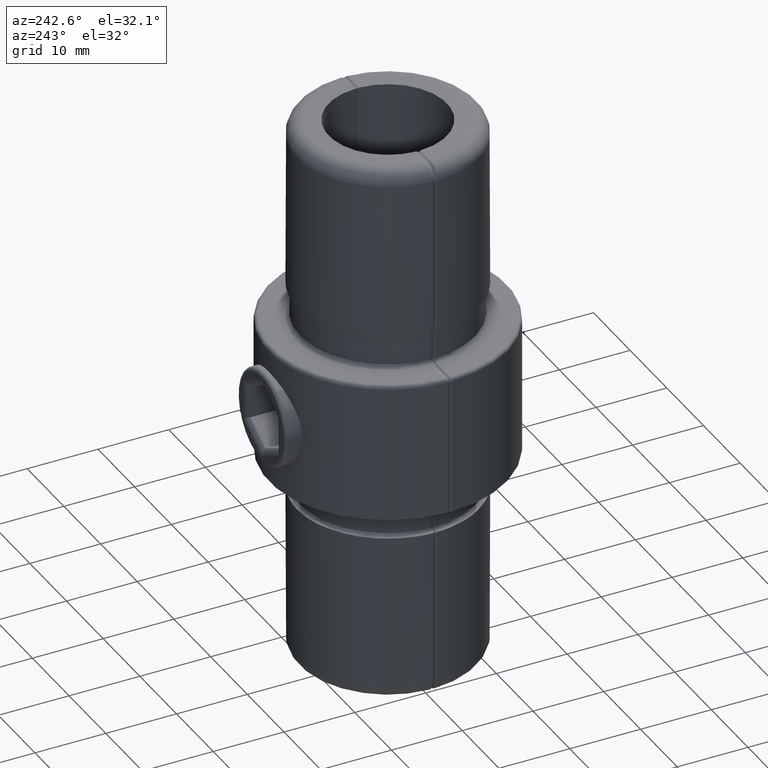
[diagram: clean part render]
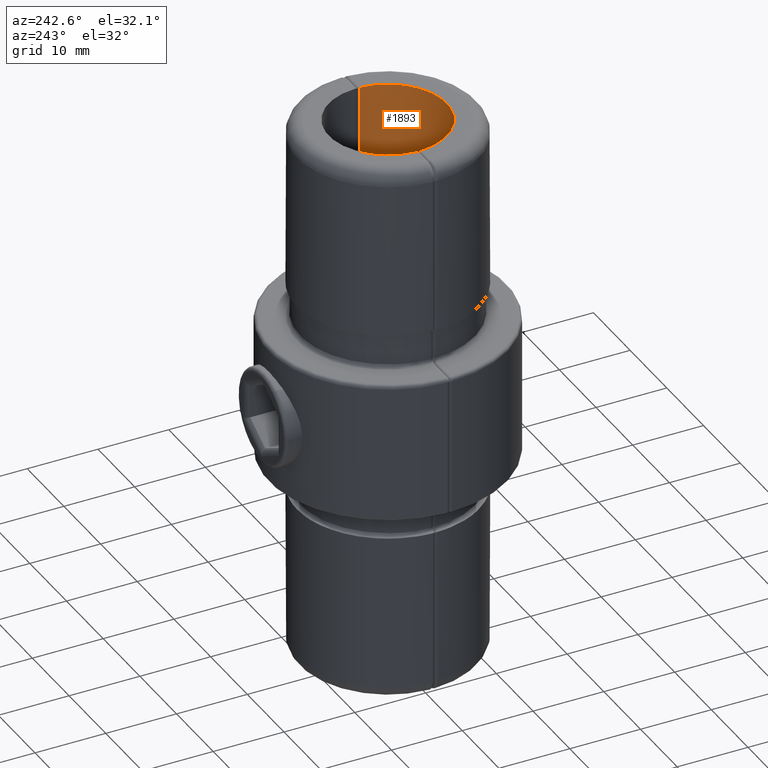
[diagram: same view with one face highlighted and labeled with its STEP entity id]
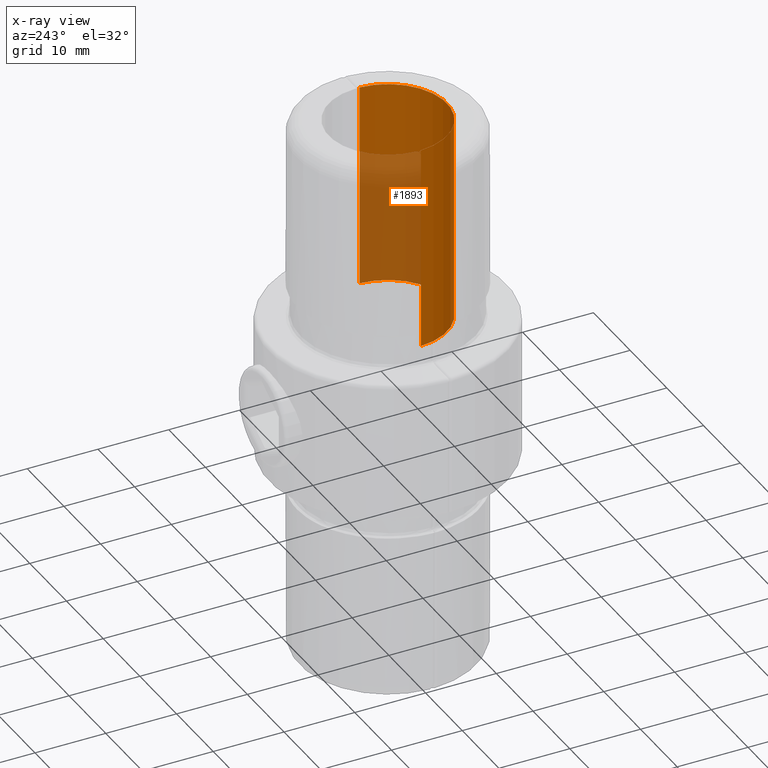
[diagram: x-ray of the same camera — body ghosted, the highlighted face saturated]
A machine part, auxiliary view. The second image highlights one B-rep face of the part: STEP entity #1893.
The next image is the same camera in x-ray: the body ghosted, the highlighted face saturated — about 40% of this face is hidden behind the body in this view.
In plain terms, the highlighted cylindrical surface (partial cylindrical patch) has radius 8.35 mm, axis along (-0, 0, -1).
Its self-contained STEP definition (entity closure, byte-faithful):
#179 = CARTESIAN_POINT ( 'NONE',  ( 8.343467552306218948, 0.4802259887005694838, -39.00000000000000000 ) ) ;
#230 = AXIS2_PLACEMENT_3D ( 'NONE', #5884, #4410, #1375 ) ;
#487 = VERTEX_POINT ( 'NONE', #5246 ) ;
#494 = CARTESIAN_POINT ( 'NONE',  ( 8.342661445845685364, 0.5000000000000045519, -10.00000000000000000 ) ) ;
#774 = CARTESIAN_POINT ( 'NONE',  ( -8.342938012921326418, 0.4934076986309678392, -39.00000000000000000 ) ) ;
#810 = CIRCLE ( 'NONE', #4341, 8.349999999999999645 ) ;
#813 = CARTESIAN_POINT ( 'NONE',  ( 8.342661445845685364, 0.5000000000000045519, -10.00000000000000000 ) ) ;
#856 = CARTESIAN_POINT ( 'NONE',  ( 8.343467552306218948, 0.4802259887005694838, -38.99960883546743418 ) ) ;
#955 = CARTESIAN_POINT ( 'NONE',  ( 8.342938012921326418, 0.4934076986309709478, -39.00000000000000000 ) ) ;
#969 = VECTOR ( 'NONE', #8671, 1000.000000000000000 ) ;
#1067 = AXIS2_PLACEMENT_3D ( 'NONE', #5717, #9354, #4888 ) ;
#1077 = VERTEX_POINT ( 'NONE', #494 ) ;
#1375 = DIRECTION ( 'NONE',  ( 1.000000000000000000, 0.000000000000000000, 0.000000000000000000 ) ) ;
#1443 = CARTESIAN_POINT ( 'NONE',  ( -2.755455298081558953E-17, 0.1500000000000008271, -10.00000000000000000 ) ) ;
#1452 = B_SPLINE_CURVE_WITH_KNOTS ( 'NONE', 3,
 ( #2343, #6077, #3105, #2376 ),
 .UNSPECIFIED., .F., .F.,
 ( 4, 4 ),
 ( 1.084202172485504434E-19, 1.979430069963165496E-05 ),
 .UNSPECIFIED. ) ;
#1522 = CARTESIAN_POINT ( 'NONE',  ( 8.342938012921326418, 0.4934076986309709478, -10.00000000000000000 ) ) ;
#1686 = CARTESIAN_POINT ( 'NONE',  ( -8.343467552306218948, 0.4802259887005663752, -39.00000000000000000 ) ) ;
#1754 = CARTESIAN_POINT ( 'NONE',  ( 8.343467552306218948, 0.4802259887005694838, -9.999608835467437729 ) ) ;
#1850 = CARTESIAN_POINT ( 'NONE',  ( 8.342661445845683588, 0.5000000000000046629, -39.00000000000000000 ) ) ;
#1893 = ADVANCED_FACE ( 'NONE', ( #3590 ), #8712, .F. ) ;
#1898 = CARTESIAN_POINT ( 'NONE',  ( 8.343467552306218948, 0.4802259887005694838, -38.99960883546743418 ) ) ;
#1960 = ORIENTED_EDGE ( 'NONE', *, *, #6018, .T. ) ;
#2198 = EDGE_CURVE ( 'NONE', #8225, #4314, #4067, .T. ) ;
#2343 = CARTESIAN_POINT ( 'NONE',  ( -8.342661445845685364, 0.5000000000000015543, -10.00000000000000000 ) ) ;
#2376 = CARTESIAN_POINT ( 'NONE',  ( -8.343467552306218948, 0.4802259887005664307, -9.999608835467437729 ) ) ;
#2467 = CARTESIAN_POINT ( 'NONE',  ( -8.342661445845685364, 0.5000000000000015543, -39.00000000000000000 ) ) ;
#2742 = B_SPLINE_CURVE_WITH_KNOTS ( 'NONE', 3,
 ( #6967, #955, #6226, #856 ),
 .UNSPECIFIED., .F., .F.,
 ( 4, 4 ),
 ( 0.000000000000000000, 1.979430069963180065E-05 ),
 .UNSPECIFIED. ) ;
#2933 = DIRECTION ( 'NONE',  ( 0.000000000000000000, 0.000000000000000000, -1.000000000000000000 ) ) ;
#3040 = ORIENTED_EDGE ( 'NONE', *, *, #6671, .T. ) ;
#3105 = CARTESIAN_POINT ( 'NONE',  ( -8.343206814312539521, 0.4868137772585575118, -9.999869573461117156 ) ) ;
#3163 = ORIENTED_EDGE ( 'NONE', *, *, #3950, .T. ) ;
#3389 = EDGE_CURVE ( 'NONE', #5378, #487, #7251, .T. ) ;
#3468 = VERTEX_POINT ( 'NONE', #6454 ) ;
#3590 = FACE_OUTER_BOUND ( 'NONE', #6607, .T. ) ;
#3857 = EDGE_CURVE ( 'NONE', #7432, #8225, #3901, .T. ) ;
#3901 = B_SPLINE_CURVE_WITH_KNOTS ( 'NONE', 3,
 ( #8210, #5182, #774, #5952 ),
 .UNSPECIFIED., .F., .F.,
 ( 4, 4 ),
 ( 0.000000000000000000, 1.979430069963163463E-05 ),
 .UNSPECIFIED. ) ;
#3950 = EDGE_CURVE ( 'NONE', #6891, #3468, #1452, .T. ) ;
#3988 = ORIENTED_EDGE ( 'NONE', *, *, #7817, .T. ) ;
#4067 = CIRCLE ( 'NONE', #1067, 8.349999999999999645 ) ;
#4082 = VECTOR ( 'NONE', #8480, 1000.000000000000000 ) ;
#4127 = ORIENTED_EDGE ( 'NONE', *, *, #3389, .T. ) ;
#4314 = VERTEX_POINT ( 'NONE', #1850 ) ;
#4341 = AXIS2_PLACEMENT_3D ( 'NONE', #1443, #2933, #8302 ) ;
#4410 = DIRECTION ( 'NONE',  ( -0.000000000000000000, -0.000000000000000000, 1.000000000000000000 ) ) ;
#4888 = DIRECTION ( 'NONE',  ( 1.000000000000000000, 0.000000000000000000, 0.000000000000000000 ) ) ;
#5182 = CARTESIAN_POINT ( 'NONE',  ( -8.343206814312539521, 0.4868137772585574563, -38.99986957346111893 ) ) ;
#5246 = CARTESIAN_POINT ( 'NONE',  ( 8.343467552306218948, 0.4802259887005694838, -9.999608835467437729 ) ) ;
#5378 = VERTEX_POINT ( 'NONE', #1898 ) ;
#5717 = CARTESIAN_POINT ( 'NONE',  ( -2.755455298081558953E-17, 0.1500000000000008271, -39.00000000000000000 ) ) ;
#5884 = CARTESIAN_POINT ( 'NONE',  ( -2.755455298081558953E-17, 0.1500000000000008271, -39.00000000000000000 ) ) ;
#5952 = CARTESIAN_POINT ( 'NONE',  ( -8.342661445845685364, 0.5000000000000015543, -39.00000000000000000 ) ) ;
#6018 = EDGE_CURVE ( 'NONE', #487, #1077, #7233, .T. ) ;
#6077 = CARTESIAN_POINT ( 'NONE',  ( -8.342938012921326418, 0.4934076986309678392, -10.00000000000000000 ) ) ;
#6226 = CARTESIAN_POINT ( 'NONE',  ( 8.343206814312539521, 0.4868137772585605649, -38.99986957346111893 ) ) ;
#6345 = LINE ( 'NONE', #1686, #4082 ) ;
#6454 = CARTESIAN_POINT ( 'NONE',  ( -8.343467552306218948, 0.4802259887005664307, -9.999608835467437729 ) ) ;
#6607 = EDGE_LOOP ( 'NONE', ( #7898, #3040, #4127, #1960, #7190, #3163, #3988, #8899 ) ) ;
#6671 = EDGE_CURVE ( 'NONE', #4314, #5378, #2742, .T. ) ;
#6768 = CARTESIAN_POINT ( 'NONE',  ( 8.343206814312539521, 0.4868137772585605649, -9.999869573461117156 ) ) ;
#6786 = CARTESIAN_POINT ( 'NONE',  ( -8.342661445845685364, 0.5000000000000015543, -10.00000000000000000 ) ) ;
#6833 = EDGE_CURVE ( 'NONE', #6891, #1077, #810, .T. ) ;
#6891 = VERTEX_POINT ( 'NONE', #6786 ) ;
#6967 = CARTESIAN_POINT ( 'NONE',  ( 8.342661445845683588, 0.5000000000000046629, -39.00000000000000000 ) ) ;
#7190 = ORIENTED_EDGE ( 'NONE', *, *, #6833, .F. ) ;
#7233 = B_SPLINE_CURVE_WITH_KNOTS ( 'NONE', 3,
 ( #1754, #6768, #1522, #813 ),
 .UNSPECIFIED., .F., .F.,
 ( 4, 4 ),
 ( 0.000000000000000000, 1.979430069963154654E-05 ),
 .UNSPECIFIED. ) ;
#7251 = LINE ( 'NONE', #179, #969 ) ;
#7432 = VERTEX_POINT ( 'NONE', #7727 ) ;
#7727 = CARTESIAN_POINT ( 'NONE',  ( -8.343467552306218948, 0.4802259887005663752, -38.99960883546743418 ) ) ;
#7817 = EDGE_CURVE ( 'NONE', #3468, #7432, #6345, .T. ) ;
#7898 = ORIENTED_EDGE ( 'NONE', *, *, #2198, .T. ) ;
#8210 = CARTESIAN_POINT ( 'NONE',  ( -8.343467552306218948, 0.4802259887005663752, -38.99960883546743418 ) ) ;
#8225 = VERTEX_POINT ( 'NONE', #2467 ) ;
#8302 = DIRECTION ( 'NONE',  ( 1.000000000000000000, 0.000000000000000000, 0.000000000000000000 ) ) ;
#8480 = DIRECTION ( 'NONE',  ( 0.000000000000000000, 0.000000000000000000, -1.000000000000000000 ) ) ;
#8671 = DIRECTION ( 'NONE',  ( -0.000000000000000000, -0.000000000000000000, 1.000000000000000000 ) ) ;
#8712 = CYLINDRICAL_SURFACE ( 'NONE', #230, 8.349999999999999645 ) ;
#8899 = ORIENTED_EDGE ( 'NONE', *, *, #3857, .T. ) ;
#9354 = DIRECTION ( 'NONE',  ( 0.000000000000000000, 0.000000000000000000, -1.000000000000000000 ) ) ;